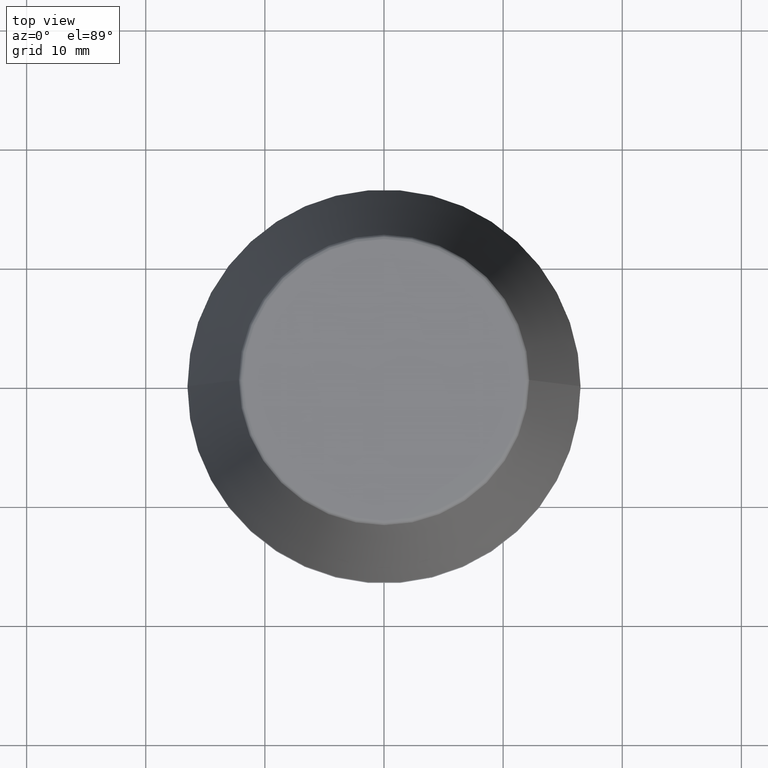
[diagram: clean part render]
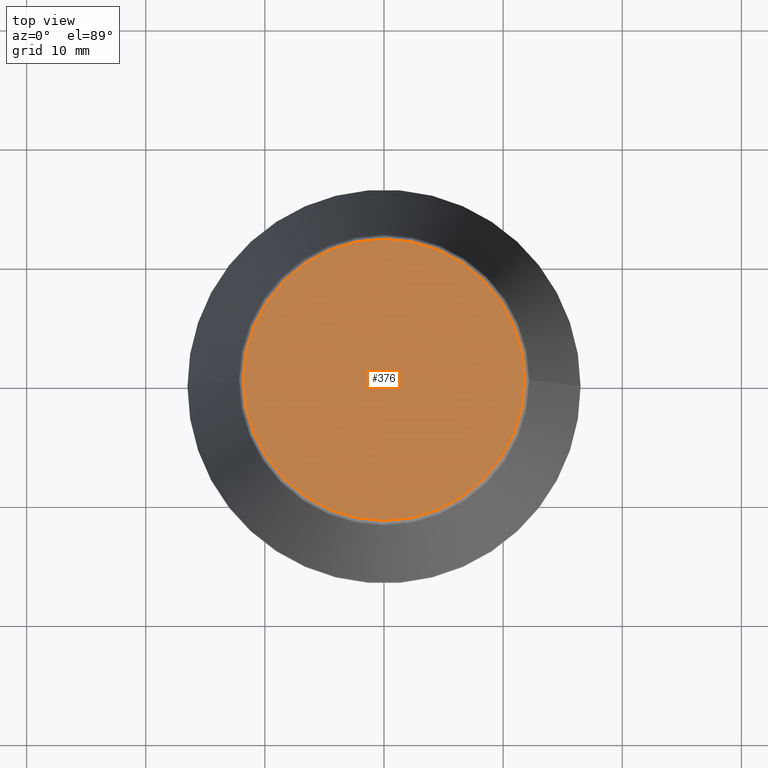
[diagram: same view with one face highlighted and labeled with its STEP entity id]
A machine part, top view. The second image highlights one B-rep face of the part: STEP entity #376.
In plain terms, the highlighted planar face has unit normal (0, 0, -1).
Its self-contained STEP definition (entity closure, byte-faithful):
#10 = DIRECTION ( 'NONE',  ( 0.0000000000000000000, 0.0000000000000000000, -1.000000000000000000 ) ) ;
#17 = DIRECTION ( 'NONE',  ( 1.000000000000000000, 0.0000000000000000000, 0.0000000000000000000 ) ) ;
#26 = DIRECTION ( 'NONE',  ( 1.000000000000000000, 0.0000000000000000000, 0.0000000000000000000 ) ) ;
#67 = AXIS2_PLACEMENT_3D ( 'NONE', #367, #198, #17 ) ;
#75 = AXIS2_PLACEMENT_3D ( 'NONE', #375, #203, #26 ) ;
#90 = AXIS2_PLACEMENT_3D ( 'NONE', #364, #10, #224 ) ;
#147 = CIRCLE ( 'NONE', #67, 11.80989888411031400 ) ;
#157 = CIRCLE ( 'NONE', #75, 11.80989888411031400 ) ;
#178 = VERTEX_POINT ( 'NONE', #314 ) ;
#198 = DIRECTION ( 'NONE',  ( -0.0000000000000000000, -0.0000000000000000000, 1.000000000000000000 ) ) ;
#203 = DIRECTION ( 'NONE',  ( -0.0000000000000000000, -0.0000000000000000000, 1.000000000000000000 ) ) ;
#224 = DIRECTION ( 'NONE',  ( -1.000000000000000000, 0.0000000000000000000, -0.0000000000000000000 ) ) ;
#228 = EDGE_CURVE ( 'NONE', #178, #351, #157, .T. ) ;
#245 = EDGE_CURVE ( 'NONE', #351, #178, #147, .T. ) ;
#254 = CARTESIAN_POINT ( 'NONE',  ( -11.80989888411031400, 1.470550059081603400E-015, 40.00000000000000700 ) ) ;
#294 = ORIENTED_EDGE ( 'NONE', *, *, #228, .T. ) ;
#308 = EDGE_LOOP ( 'NONE', ( #294, #384 ) ) ;
#314 = CARTESIAN_POINT ( 'NONE',  ( 11.80989888411031400, 0.0000000000000000000, 40.00000000000000700 ) ) ;
#330 = PLANE ( 'NONE',  #90 ) ;
#351 = VERTEX_POINT ( 'NONE', #254 ) ;
#364 = CARTESIAN_POINT ( 'NONE',  ( 0.0000000000000000000, 11.80989888411031400, 40.00000000000000700 ) ) ;
#367 = CARTESIAN_POINT ( 'NONE',  ( 0.0000000000000000000, 0.0000000000000000000, 40.00000000000000700 ) ) ;
#375 = CARTESIAN_POINT ( 'NONE',  ( 0.0000000000000000000, 0.0000000000000000000, 40.00000000000000700 ) ) ;
#376 = ADVANCED_FACE ( 'NONE', ( #383 ), #330, .F. ) ;
#383 = FACE_OUTER_BOUND ( 'NONE', #308, .T. ) ;
#384 = ORIENTED_EDGE ( 'NONE', *, *, #245, .T. ) ;